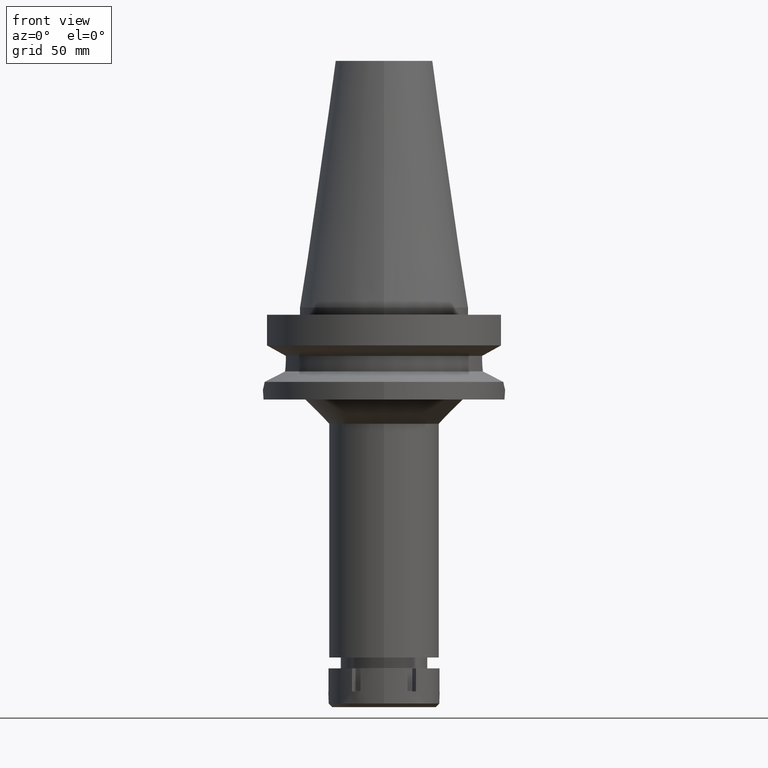
[diagram: clean part render]
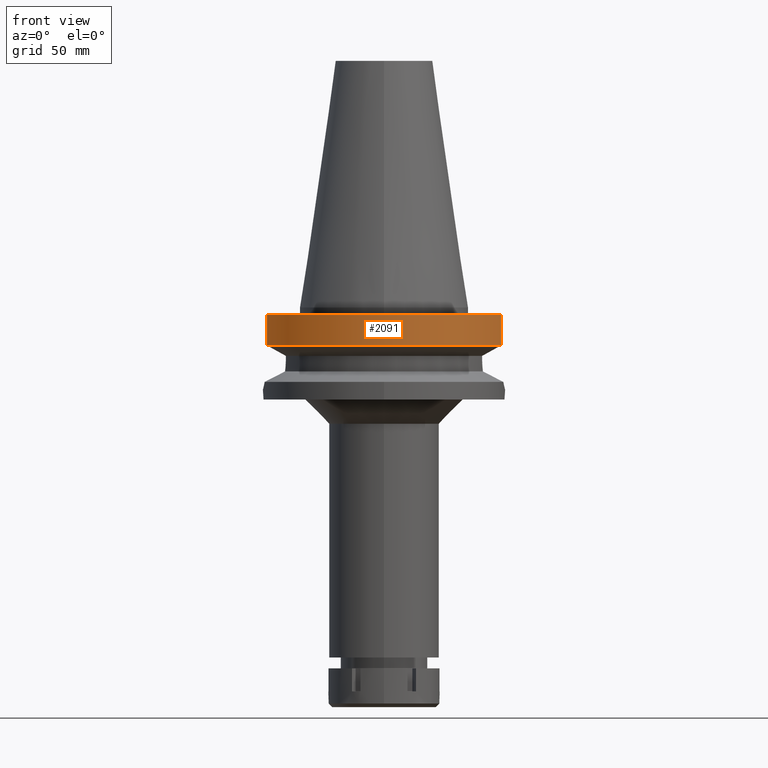
[diagram: same view with one face highlighted and labeled with its STEP entity id]
A machine part, front view. The second image highlights one B-rep face of the part: STEP entity #2091.
In plain terms, the highlighted cylindrical surface (partial cylindrical patch) has radius 50 mm, axis along (0, 0, -1).
Its self-contained STEP definition (entity closure, byte-faithful):
#190 = DIRECTION ( 'NONE',  ( -8.103519278860602309E-08, -3.047209459813850567E-07, -0.9999999999999503730 ) ) ;
#509 = DIRECTION ( 'NONE',  ( 0.0000000000000000000, -1.000000000000000000, 0.0000000000000000000 ) ) ;
#724 = VERTEX_POINT ( 'NONE', #3145 ) ;
#786 = FACE_OUTER_BOUND ( 'NONE', #3141, .T. ) ;
#857 = DIRECTION ( 'NONE',  ( 0.0000000000000000000, -1.000000000000000000, 0.0000000000000000000 ) ) ;
#872 = ORIENTED_EDGE ( 'NONE', *, *, #2632, .F. ) ;
#952 = ORIENTED_EDGE ( 'NONE', *, *, #2134, .T. ) ;
#993 = AXIS2_PLACEMENT_3D ( 'NONE', #1322, #1849, #2709 ) ;
#1063 = EDGE_CURVE ( 'NONE', #724, #1092, #3558, .T. ) ;
#1092 = VERTEX_POINT ( 'NONE', #3105 ) ;
#1226 = AXIS2_PLACEMENT_3D ( 'NONE', #3128, #3426, #857 ) ;
#1322 = CARTESIAN_POINT ( 'NONE',  ( 0.0000000000000000000, 1.006319759053999930E-14, -15.66269223573000069 ) ) ;
#1350 = LINE ( 'NONE', #3014, #2109 ) ;
#1418 = CARTESIAN_POINT ( 'NONE',  ( -48.32056912814000071, -12.85000385727999905, -15.66265768250999990 ) ) ;
#1684 = LINE ( 'NONE', #1418, #3675 ) ;
#1849 = DIRECTION ( 'NONE',  ( 0.0000000000000000000, 0.0000000000000000000, 1.000000000000000000 ) ) ;
#1921 = CARTESIAN_POINT ( 'NONE',  ( 0.0000000000000000000, 2.629806536488999751E-14, 114.7399999999999949 ) ) ;
#2091 = ADVANCED_FACE ( 'NONE', ( #786 ), #2216, .T. ) ;
#2109 = VECTOR ( 'NONE', #190, 999.9999999999998863 ) ;
#2134 = EDGE_CURVE ( 'NONE', #2298, #2666, #2856, .T. ) ;
#2216 = CYLINDRICAL_SURFACE ( 'NONE', #2438, 50.00000000000000000 ) ;
#2298 = VERTEX_POINT ( 'NONE', #2954 ) ;
#2438 = AXIS2_PLACEMENT_3D ( 'NONE', #1921, #3078, #509 ) ;
#2517 = ORIENTED_EDGE ( 'NONE', *, *, #3576, .F. ) ;
#2611 = ORIENTED_EDGE ( 'NONE', *, *, #1063, .T. ) ;
#2632 = EDGE_CURVE ( 'NONE', #2298, #1092, #1684, .T. ) ;
#2666 = VERTEX_POINT ( 'NONE', #3389 ) ;
#2709 = DIRECTION ( 'NONE',  ( 0.0000000000000000000, -1.000000000000000000, 0.0000000000000000000 ) ) ;
#2856 = CIRCLE ( 'NONE', #993, 50.00000000000000000 ) ;
#2904 = DIRECTION ( 'NONE',  ( -8.100800697240604101E-08, 3.046187202870850882E-07, 0.9999999999999503730 ) ) ;
#2954 = CARTESIAN_POINT ( 'NONE',  ( -48.32056912814000071, -12.85000385727999905, -15.66265768250999990 ) ) ;
#3014 = CARTESIAN_POINT ( 'NONE',  ( 48.32057015392000210, -12.84999999999999964, -3.000000000000000000 ) ) ;
#3078 = DIRECTION ( 'NONE',  ( 0.0000000000000000000, 0.0000000000000000000, -1.000000000000000000 ) ) ;
#3105 = CARTESIAN_POINT ( 'NONE',  ( -48.32057015392000210, -12.84999999999999964, -3.000000000000000000 ) ) ;
#3128 = CARTESIAN_POINT ( 'NONE',  ( 0.0000000000000000000, 2.629806536488999751E-14, -3.000000000000000000 ) ) ;
#3141 = EDGE_LOOP ( 'NONE', ( #872, #952, #2517, #2611 ) ) ;
#3145 = CARTESIAN_POINT ( 'NONE',  ( 48.32057015392000210, -12.84999999999999964, -3.000000000000000000 ) ) ;
#3389 = CARTESIAN_POINT ( 'NONE',  ( 48.32057015392000210, -12.84999999999999964, -15.66269223573000069 ) ) ;
#3426 = DIRECTION ( 'NONE',  ( 0.0000000000000000000, 0.0000000000000000000, -1.000000000000000000 ) ) ;
#3558 = CIRCLE ( 'NONE', #1226, 50.00000000000000000 ) ;
#3576 = EDGE_CURVE ( 'NONE', #724, #2666, #1350, .T. ) ;
#3675 = VECTOR ( 'NONE', #2904, 1000.000000000000114 ) ;